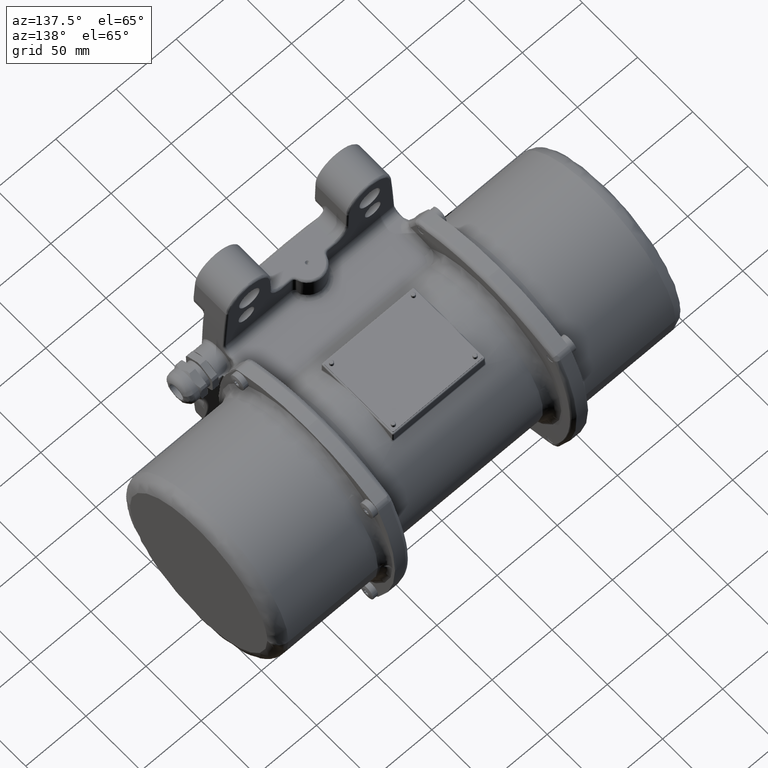
[diagram: clean part render]
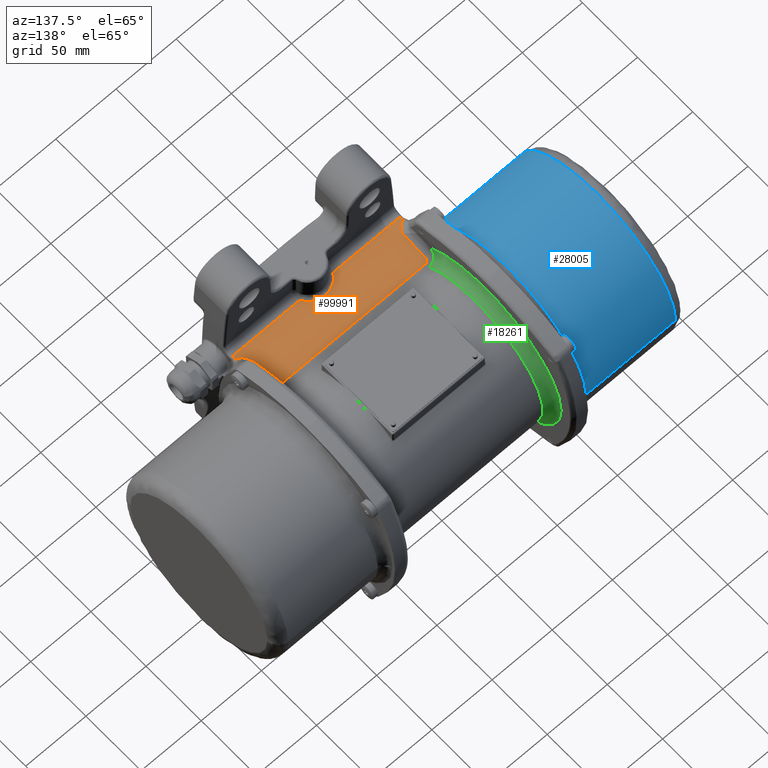
[diagram: same view with three faces highlighted in distinct colors, each labeled with its STEP entity id]
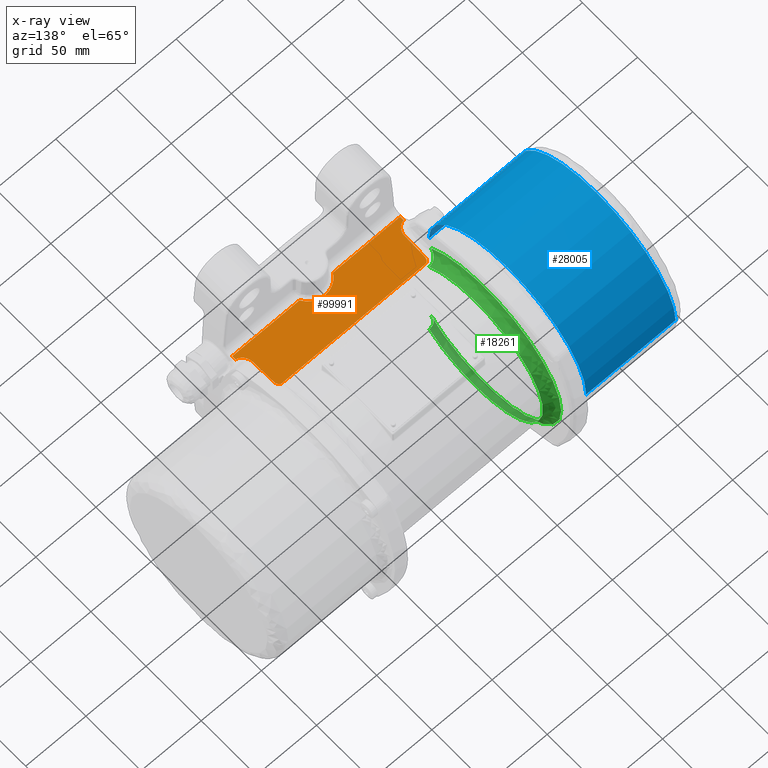
[diagram: x-ray of the same camera — body ghosted, the three highlighted faces saturated]
A machine part, auxiliary view with three faces highlighted in distinct colors.
The next image is the same camera in x-ray (body ghosted, the three faces saturated) — at least one of them is partly hidden behind the body in this view.
Their STEP definitions:

[orange] entity #99991 — the highlighted planar face has unit normal (0, 0, -1).
#787 = CARTESIAN_POINT ( 'NONE',  ( -60.93914837977910500, 69.64585688142381100, 44.00000000000000000 ) ) ;
#1510 = CARTESIAN_POINT ( 'NONE',  ( -65.73974833302568800, 41.04286132038910000, 44.00000000000000000 ) ) ;
#3426 = CARTESIAN_POINT ( 'NONE',  ( -64.37924661413099200, 42.70941332293130400, 44.00000000000000000 ) ) ;
#3822 = CARTESIAN_POINT ( 'NONE',  ( 61.97631834188963800, 68.50623183866042600, 44.00000000000000700 ) ) ;
#4381 = VECTOR ( 'NONE', #81624, 1000.000000000000000 ) ;
#4954 = CARTESIAN_POINT ( 'NONE',  ( -63.06913653580949100, 47.25139716127480200, 44.00000000000000000 ) ) ;
#6128 = CARTESIAN_POINT ( 'NONE',  ( 62.69755902713980300, 65.82337567858870400, 44.00000000000000000 ) ) ;
#7686 = CARTESIAN_POINT ( 'NONE',  ( 59.69858705221309900, 70.04168597467200600, 44.00000000000000000 ) ) ;
#7708 = CARTESIAN_POINT ( 'NONE',  ( -59.69858705221279400, 70.04168597467210600, 44.00000000000000000 ) ) ;
#8074 = VERTEX_POINT ( 'NONE', #52293 ) ;
#8518 = LINE ( 'NONE', #28122, #52681 ) ;
#9065 = CARTESIAN_POINT ( 'NONE',  ( 63.12744215870480200, 46.28838944067730000, 44.00000000000000000 ) ) ;
#10610 = CARTESIAN_POINT ( 'NONE',  ( -60.37346366826241700, 69.92822857121545600, 44.00000000000002100 ) ) ;
#11090 = CARTESIAN_POINT ( 'NONE',  ( -61.20728136503299100, 69.45312635832974000, 44.00000000000000700 ) ) ;
#11574 = CARTESIAN_POINT ( 'NONE',  ( -61.94764204648407000, 68.55415311333156600, 44.00000000000002100 ) ) ;
#12246 = DIRECTION ( 'NONE',  ( -1.000000000000000000, -1.504632769052529900E-035, -1.925929944387235000E-034 ) ) ;
#12849 = EDGE_CURVE ( 'NONE', #69694, #144340, #115960, .T. ) ;
#14233 = ORIENTED_EDGE ( 'NONE', *, *, #52243, .F. ) ;
#14637 = CARTESIAN_POINT ( 'NONE',  ( 62.55255942499282900, 67.02791100050895100, 43.99999999999999300 ) ) ;
#15898 = ORIENTED_EDGE ( 'NONE', *, *, #138067, .T. ) ;
#16562 = CARTESIAN_POINT ( 'NONE',  ( 62.43914540871696800, 67.46722012740157500, 44.00000000000002100 ) ) ;
#17711 = DIRECTION ( 'NONE',  ( 1.387778780781446000E-017, 1.000000000000000000, 1.623133076937364900E-016 ) ) ;
#19518 = CARTESIAN_POINT ( 'NONE',  ( -13.85640646055101900, 36.00000000000000000, 44.00000000000000000 ) ) ;
#19756 = ORIENTED_EDGE ( 'NONE', *, *, #87894, .F. ) ;
#19886 = CARTESIAN_POINT ( 'NONE',  ( 68.13056046211950400, 39.47420850798485500, 44.00000000000000000 ) ) ;
#20861 = CARTESIAN_POINT ( 'NONE',  ( 63.73048527093780500, 43.98627775789584900, 44.00000000000000000 ) ) ;
#21356 = CARTESIAN_POINT ( 'NONE',  ( 65.24438459040619900, 41.55727632668649800, 44.00000000000000000 ) ) ;
#21930 = CARTESIAN_POINT ( 'NONE',  ( -61.72221382262493000, 68.89454461071240100, 44.00000000000002100 ) ) ;
#22426 = CARTESIAN_POINT ( 'NONE',  ( -60.66910831716646900, 69.80909092703433300, 44.00000000000000700 ) ) ;
#22479 = VERTEX_POINT ( 'NONE', #94666 ) ;
#25112 = CARTESIAN_POINT ( 'NONE',  ( -66.65151048912709100, 40.28032519914140200, 44.00000000000000000 ) ) ;
#25862 = CARTESIAN_POINT ( 'NONE',  ( -9.957640517840689800E-016, 44.00000000000000000, 44.00000000000000000 ) ) ;
#25870 = ORIENTED_EDGE ( 'NONE', *, *, #72873, .F. ) ;
#25967 = CARTESIAN_POINT ( 'NONE',  ( 62.06103111216074800, 68.35763599300942400, 44.00000000000000700 ) ) ;
#26107 = VECTOR ( 'NONE', #103478, 1000.000000000000000 ) ;
#26111 = FACE_OUTER_BOUND ( 'NONE', #138147, .T. ) ;
#26474 = CARTESIAN_POINT ( 'NONE',  ( 62.15446629782044900, 68.17977921213324100, 44.00000000000000700 ) ) ;
#28122 = CARTESIAN_POINT ( 'NONE',  ( 90.00000000000000000, 70.04168597467200600, 44.00000000000000000 ) ) ;
#28143 = EDGE_CURVE ( 'NONE', #106541, #58354, #135693, .T. ) ;
#28285 = ORIENTED_EDGE ( 'NONE', *, *, #46505, .T. ) ;
#28296 = CARTESIAN_POINT ( 'NONE',  ( 63.06913653580969700, 47.25139716127340300, 44.00000000000000000 ) ) ;
#30303 = ORIENTED_EDGE ( 'NONE', *, *, #44052, .F. ) ;
#31190 = CARTESIAN_POINT ( 'NONE',  ( -9.957640517840689800E-016, 44.00000000000000000, 44.00000000000000000 ) ) ;
#32217 = CARTESIAN_POINT ( 'NONE',  ( 66.65749876452810000, 40.27604242282930600, 44.00000000000000000 ) ) ;
#32810 = CARTESIAN_POINT ( 'NONE',  ( -61.45936443029931000, 69.22282388759099100, 44.00000000000001400 ) ) ;
#33206 = CARTESIAN_POINT ( 'NONE',  ( 63.06913653580969700, 47.25139716127340300, 44.00000000000000000 ) ) ;
#33295 = CARTESIAN_POINT ( 'NONE',  ( -62.44665151210659100, 67.42690501863685900, 43.99999999999999300 ) ) ;
#33790 = CARTESIAN_POINT ( 'NONE',  ( -62.49742943261289000, 67.24790755735297400, 44.00000000000000700 ) ) ;
#34287 = CARTESIAN_POINT ( 'NONE',  ( -62.08124458693401200, 68.33057048732710800, 44.00000000000000700 ) ) ;
#34770 = CARTESIAN_POINT ( 'NONE',  ( -62.68870446208340000, 66.30072296379867700, 44.00000000000002100 ) ) ;
#36287 = B_SPLINE_CURVE_WITH_KNOTS ( 'NONE', 3,
 ( #33206, #53950, #9065, #133950, #110733, #20861, #65336, #54450, #44055, #144310, #21356, #123091, #87583, #144801, #32217, #43087, #112210, #134429, #19886, #110255, #43574, #145286 ),
 .UNSPECIFIED., .F., .F.,
 ( 4, 2, 2, 2, 2, 2, 2, 2, 2, 2, 4 ),
 ( 0.0000000000000000000, 0.1249999999999999000, 0.2499999999999998100, 0.3749999999999998900, 0.4999999999999997800, 0.5624999999999997800, 0.6249999999999997800, 0.7499999999999997800, 0.8125000000000001100, 0.8749999999999998900, 1.000000000000000000 ),
 .UNSPECIFIED. ) ;
#36460 = CARTESIAN_POINT ( 'NONE',  ( -65.56923131538499700, 41.20997178247209500, 44.00000000000000000 ) ) ;
#37634 = CARTESIAN_POINT ( 'NONE',  ( -63.06913653580949100, 47.25139716127480200, 44.00000000000000000 ) ) ;
#37903 = CARTESIAN_POINT ( 'NONE',  ( -65.24148060396989000, 41.56058246237769500, 44.00000000000000000 ) ) ;
#38900 = CARTESIAN_POINT ( 'NONE',  ( -63.08960673065769200, 46.28663680971320800, 44.00000000000000000 ) ) ;
#40766 = CARTESIAN_POINT ( 'NONE',  ( 60.44975143094574600, 69.90066909475785900, 44.00000000000001400 ) ) ;
#43087 = CARTESIAN_POINT ( 'NONE',  ( 67.27126646777959700, 39.89869817570879500, 44.00000000000000000 ) ) ;
#43574 = CARTESIAN_POINT ( 'NONE',  ( 69.25640506299780000, 39.09028600291355100, 44.00000000000000000 ) ) ;
#43707 = CARTESIAN_POINT ( 'NONE',  ( -10.92820323027548200, 41.07179676972451400, 44.00000000000000000 ) ) ;
#43811 = CARTESIAN_POINT ( 'NONE',  ( 69.73171560659889700, 36.00000000000000000, 44.00000000000000000 ) ) ;
#44052 = EDGE_CURVE ( 'NONE', #58354, #94712, #137405, .T. ) ;
#44055 = CARTESIAN_POINT ( 'NONE',  ( 64.64385129768381000, 42.30533168460365100, 44.00000000000000000 ) ) ;
#44097 = VERTEX_POINT ( 'NONE', #48823 ) ;
#44144 = CARTESIAN_POINT ( 'NONE',  ( -60.85005480650102800, 69.70401138623425700, 44.00000000000000700 ) ) ;
#45010 = ORIENTED_EDGE ( 'NONE', *, *, #100752, .F. ) ;
#45048 = ORIENTED_EDGE ( 'NONE', *, *, #133711, .T. ) ;
#45110 = CARTESIAN_POINT ( 'NONE',  ( -59.81724425777766600, 70.04168597467206300, 44.00000000000000000 ) ) ;
#45237 = LINE ( 'NONE', #136173, #71750 ) ;
#45848 = CARTESIAN_POINT ( 'NONE',  ( -69.73171560659868400, 39.00551916017050000, 44.00000000000000000 ) ) ;
#46344 = CARTESIAN_POINT ( 'NONE',  ( -67.90682384896331300, 39.57209242728400500, 44.00000000000000000 ) ) ;
#46505 = EDGE_CURVE ( 'NONE', #97474, #54708, #8518, .T. ) ;
#47273 = CARTESIAN_POINT ( 'NONE',  ( -62.69755902713949800, 65.82337567858870400, 44.00000000000000000 ) ) ;
#47744 =( BOUNDED_CURVE ( )  B_SPLINE_CURVE ( 3, ( #110868, #109894, #43707, #19518 ),
 .UNSPECIFIED., .F., .F. ) 
 B_SPLINE_CURVE_WITH_KNOTS ( ( 4, 4 ),
 ( 0.0000000000000000000, 1.000000000000000000 ),
 .UNSPECIFIED. ) 
 CURVE ( )  GEOMETRIC_REPRESENTATION_ITEM ( )  RATIONAL_B_SPLINE_CURVE ( ( 1.000000000000000000, 0.9106836025229585500, 0.9106836025229585500, 1.000000000000000000 ) ) 
 REPRESENTATION_ITEM ( '' )  );
#48184 = CARTESIAN_POINT ( 'NONE',  ( 62.01213071407656200, 68.44474619699582300, 44.00000000000000700 ) ) ;
#48267 = CARTESIAN_POINT ( 'NONE',  ( -64.03861936811840400, 43.33635638475445300, 44.00000000000000000 ) ) ;
#48648 = CARTESIAN_POINT ( 'NONE',  ( 62.66539736207156600, 66.41959311480491100, 43.99999999999999300 ) ) ;
#48823 = CARTESIAN_POINT ( 'NONE',  ( 62.69755902713980300, 65.82337567858870400, 44.00000000000000000 ) ) ;
#49136 = CARTESIAN_POINT ( 'NONE',  ( 62.59630138764368500, 66.82651127289625500, 44.00000000000000700 ) ) ;
#50128 = CARTESIAN_POINT ( 'NONE',  ( 62.53184273197745600, 67.11378387989312000, 44.00000000000001400 ) ) ;
#51945 = CARTESIAN_POINT ( 'NONE',  ( 62.93778690209700200, 53.44190633790329800, 44.00000000000000000 ) ) ;
#52243 = EDGE_CURVE ( 'NONE', #144340, #8074, #47744, .T. ) ;
#52293 = CARTESIAN_POINT ( 'NONE',  ( -13.85640646055101900, 36.00000000000000000, 44.00000000000000000 ) ) ;
#52596 = LINE ( 'NONE', #115801, #26107 ) ;
#52617 = CARTESIAN_POINT ( 'NONE',  ( 59.69858705221309900, 70.04168597467200600, 44.00000000000000000 ) ) ;
#52681 = VECTOR ( 'NONE', #96270, 1000.000000000000000 ) ;
#53950 = CARTESIAN_POINT ( 'NONE',  ( 63.07936386993849700, 46.76938283554190400, 44.00000000000000000 ) ) ;
#54450 = CARTESIAN_POINT ( 'NONE',  ( 64.38268712286550500, 42.70365345106030500, 44.00000000000000000 ) ) ;
#54708 = VERTEX_POINT ( 'NONE', #113141 ) ;
#55528 = CARTESIAN_POINT ( 'NONE',  ( -60.19803176057953900, 69.98140778909733200, 44.00000000000001400 ) ) ;
#55621 = LINE ( 'NONE', #93927, #4381 ) ;
#56506 = CARTESIAN_POINT ( 'NONE',  ( -59.99399217286085000, 70.02629579963171100, 44.00000000000001400 ) ) ;
#57256 = CARTESIAN_POINT ( 'NONE',  ( -69.25558734267220000, 39.09043183571355200, 44.00000000000000000 ) ) ;
#58234 = CARTESIAN_POINT ( 'NONE',  ( -67.47578581920839700, 39.78542522274860000, 44.00000000000000000 ) ) ;
#58354 = VERTEX_POINT ( 'NONE', #37634 ) ;
#59593 = CARTESIAN_POINT ( 'NONE',  ( 62.69755902713980300, 65.82337567858870400, 44.00000000000000000 ) ) ;
#59686 = CARTESIAN_POINT ( 'NONE',  ( -63.93348595433230500, 43.55027288247789800, 44.00000000000000000 ) ) ;
#60086 = CARTESIAN_POINT ( 'NONE',  ( 61.97007982350808700, 68.51677816195974900, 44.00000000000000700 ) ) ;
#60659 = CARTESIAN_POINT ( 'NONE',  ( -63.25604765916130400, 45.34901738768449800, 44.00000000000000000 ) ) ;
#64825 = AXIS2_PLACEMENT_3D ( 'NONE', #142114, #129815, #17711 ) ;
#65336 = CARTESIAN_POINT ( 'NONE',  ( 63.92636548624800200, 43.54239912278794800, 44.00000000000000000 ) ) ;
#66394 = CARTESIAN_POINT ( 'NONE',  ( -62.38251506993059100, 67.62946058095141700, 44.00000000000000700 ) ) ;
#67422 = CARTESIAN_POINT ( 'NONE',  ( 10.92820323027548900, 41.07179676972448600, 43.99999999999999300 ) ) ;
#68335 = CARTESIAN_POINT ( 'NONE',  ( -60.50928102440239800, 69.87990858688422700, 44.00000000000000700 ) ) ;
#68578 = CARTESIAN_POINT ( 'NONE',  ( -68.79494389361329400, 39.21956169501900300, 44.00000000000000000 ) ) ;
#69057 = CARTESIAN_POINT ( 'NONE',  ( -66.27107874925739800, 40.56593489005155100, 44.00000000000000000 ) ) ;
#69694 = VERTEX_POINT ( 'NONE', #78139 ) ;
#70523 = CARTESIAN_POINT ( 'NONE',  ( -64.63976921321469100, 42.31107683890095200, 44.00000000000000000 ) ) ;
#71075 = ORIENTED_EDGE ( 'NONE', *, *, #28143, .F. ) ;
#71401 = CARTESIAN_POINT ( 'NONE',  ( 61.61192021691600500, 69.05093439640708700, 44.00000000000000700 ) ) ;
#71660 = B_SPLINE_CURVE_WITH_KNOTS ( 'NONE', 3,
 ( #6128, #119620, #51945, #28296 ),
 .UNSPECIFIED., .F., .F.,
 ( 4, 4 ),
 ( 0.0000000000000000000, 1.000000000000000000 ),
 .UNSPECIFIED. ) ;
#71750 = VECTOR ( 'NONE', #12246, 1000.000000000000000 ) ;
#72873 = EDGE_CURVE ( 'NONE', #136600, #69694, #45237, .T. ) ;
#72880 = CARTESIAN_POINT ( 'NONE',  ( 62.51063098746750800, 67.19802753963705300, 44.00000000000000700 ) ) ;
#74339 = CARTESIAN_POINT ( 'NONE',  ( 60.76849155773153700, 69.75617401989121900, 44.00000000000001400 ) ) ;
#75743 = EDGE_CURVE ( 'NONE', #44097, #133907, #71660, .T. ) ;
#77740 = CARTESIAN_POINT ( 'NONE',  ( -61.93091305827431400, 68.58150355972281900, 44.00000000000001400 ) ) ;
#78139 = CARTESIAN_POINT ( 'NONE',  ( 13.85640646055101900, 36.00000000000000000, 44.00000000000000000 ) ) ;
#78769 = CARTESIAN_POINT ( 'NONE',  ( 5.856406460551008700, 43.99999999999999300, 43.99999999999999300 ) ) ;
#81011 = CARTESIAN_POINT ( 'NONE',  ( -69.73171560659868400, 39.00551916017050000, 44.00000000000000000 ) ) ;
#81420 = CARTESIAN_POINT ( 'NONE',  ( -68.12607786423501500, 39.47605780210474800, 44.00000000000000000 ) ) ;
#81498 = ORIENTED_EDGE ( 'NONE', *, *, #116958, .F. ) ;
#81624 = DIRECTION ( 'NONE',  ( -1.387778780781446000E-017, -1.000000000000000000, -1.623133076937364900E-016 ) ) ;
#81981 = CARTESIAN_POINT ( 'NONE',  ( -62.69755902713949800, 65.82337567858870400, 44.00000000000000000 ) ) ;
#82479 = CARTESIAN_POINT ( 'NONE',  ( -62.81239615536200900, 59.63253614240220200, 44.00000000000000000 ) ) ;
#85236 = CARTESIAN_POINT ( 'NONE',  ( 60.42432310052734600, 69.91021820239873800, 44.00000000000002100 ) ) ;
#86679 = CARTESIAN_POINT ( 'NONE',  ( 59.93381797818696600, 70.04168597467204900, 44.00000000000000700 ) ) ;
#87583 = CARTESIAN_POINT ( 'NONE',  ( 65.74365774664720200, 41.03912685685595100, 44.00000000000000000 ) ) ;
#87894 = EDGE_CURVE ( 'NONE', #142492, #106541, #52596, .T. ) ;
#89638 = CARTESIAN_POINT ( 'NONE',  ( -61.00222820798681800, 69.60204531882165200, 44.00000000000001400 ) ) ;
#90016 = ORIENTED_EDGE ( 'NONE', *, *, #75743, .F. ) ;
#93243 = CARTESIAN_POINT ( 'NONE',  ( -65.08378494396158900, 41.74481535709755100, 44.00000000000000000 ) ) ;
#93641 = CARTESIAN_POINT ( 'NONE',  ( 62.32387422710476700, 67.80952015876719900, 44.00000000000000000 ) ) ;
#93927 = CARTESIAN_POINT ( 'NONE',  ( 69.73171560659889700, 29.50000000000000000, 44.00000000000000000 ) ) ;
#94286 = CARTESIAN_POINT ( 'NONE',  ( -62.93778690222290400, 53.44190633790719900, 44.00000000000000000 ) ) ;
#94666 = CARTESIAN_POINT ( 'NONE',  ( 69.73171560659889700, 39.00551916017104800, 44.00000000000000000 ) ) ;
#94712 = VERTEX_POINT ( 'NONE', #47273 ) ;
#96270 = DIRECTION ( 'NONE',  ( -1.000000000000000000, 3.061616997868385100E-016, -1.925929944387224900E-034 ) ) ;
#96751 = B_SPLINE_CURVE_WITH_KNOTS ( 'NONE', 3,
 ( #7708, #45110, #56506, #55528, #124142, #134039, #10610, #68335, #22426, #44144, #787, #100452, #89638, #100942, #11090, #32810, #21930, #101917, #123187, #77740, #11574, #124624, #34287, #101422, #66394, #33295, #145376, #135504, #33790, #102411, #34770, #112803 ),
 .UNSPECIFIED., .F., .F.,
 ( 4, 1, 1, 2, 2, 1, 1, 1, 2, 2, 1, 1, 1, 1, 2, 2, 1, 1, 1, 2, 2, 4 ),
 ( 0.0000000000000000000, 0.06249999999995795000, 0.09374999999993692500, 0.1093749999999273200, 0.1249999999999177300, 0.1874999999998814000, 0.2187499999998616100, 0.2343749999998536400, 0.2421874999998496500, 0.2499999999998456800, 0.3749999999998042100, 0.4374999999997850100, 0.4687499999997754600, 0.4843749999997725700, 0.4921874999997731800, 0.4999999999997737400, 0.6249999999998346900, 0.6874999999998645500, 0.7187499999998787600, 0.7343749999998830900, 0.7499999999998873100, 1.000000000000000000 ),
 .UNSPECIFIED. ) ;
#97474 = VERTEX_POINT ( 'NONE', #52617 ) ;
#97515 = CARTESIAN_POINT ( 'NONE',  ( 60.58376049784748600, 69.84583056268599000, 44.00000000000000000 ) ) ;
#99991 = ADVANCED_FACE ( 'NONE', ( #26111 ), #119907, .F. ) ;
#100452 = CARTESIAN_POINT ( 'NONE',  ( -60.97703569588627200, 69.61973036484568000, 44.00000000000002100 ) ) ;
#100752 = EDGE_CURVE ( 'NONE', #133907, #22479, #36287, .T. ) ;
#100942 = CARTESIAN_POINT ( 'NONE',  ( -61.01607472257461500, 69.59213627421529200, 44.00000000000000000 ) ) ;
#101422 = CARTESIAN_POINT ( 'NONE',  ( -62.23658835020260200, 68.02022469455853600, 44.00000000000000000 ) ) ;
#101917 = CARTESIAN_POINT ( 'NONE',  ( -61.84582663949980500, 68.71550670701894600, 44.00000000000001400 ) ) ;
#102411 = CARTESIAN_POINT ( 'NONE',  ( -62.62448590053377700, 66.76612011070740500, 44.00000000000000700 ) ) ;
#102466 = ORIENTED_EDGE ( 'NONE', *, *, #141468, .F. ) ;
#103478 = DIRECTION ( 'NONE',  ( 1.387778780781446000E-017, 1.000000000000000000, 1.623133076937364900E-016 ) ) ;
#105474 = CARTESIAN_POINT ( 'NONE',  ( 61.32786114848404000, 69.33898507364902700, 44.00000000000002100 ) ) ;
#106045 = CARTESIAN_POINT ( 'NONE',  ( -63.65147356445359600, 44.21283111775645100, 44.00000000000000000 ) ) ;
#106456 = CARTESIAN_POINT ( 'NONE',  ( 62.69310028151191000, 66.06374548867100300, 44.00000000000002100 ) ) ;
#106541 = VERTEX_POINT ( 'NONE', #81011 ) ;
#107901 = CARTESIAN_POINT ( 'NONE',  ( 60.92247369242110700, 69.65983927210946500, 44.00000000000000700 ) ) ;
#108394 = CARTESIAN_POINT ( 'NONE',  ( 61.06795766475005400, 69.55394673362499700, 44.00000000000001400 ) ) ;
#109894 = CARTESIAN_POINT ( 'NONE',  ( -5.856406460550966000, 44.00000000000003600, 44.00000000000000000 ) ) ;
#110255 = CARTESIAN_POINT ( 'NONE',  ( 68.79702657534650700, 39.21902692133085100, 44.00000000000000000 ) ) ;
#110733 = CARTESIAN_POINT ( 'NONE',  ( 63.41620151338700900, 44.88837375448225200, 44.00000000000000000 ) ) ;
#110868 = CARTESIAN_POINT ( 'NONE',  ( -9.957640517840689800E-016, 44.00000000000000000, 44.00000000000000000 ) ) ;
#111948 = B_SPLINE_CURVE_WITH_KNOTS ( 'NONE', 3,
 ( #59593, #106456, #48648, #49136, #14637, #50128, #140480, #72880, #16562, #93641, #26474, #25967, #48184, #116343, #3822, #60086, #139048, #71401, #105474, #116823, #128186, #108394, #141936, #120234, #107901, #74339, #97515, #130109, #40766, #85236, #119734, #86679, #7686 ),
 .UNSPECIFIED., .F., .F.,
 ( 4, 1, 1, 1, 2, 2, 1, 1, 1, 1, 2, 2, 1, 1, 1, 1, 2, 2, 1, 1, 2, 2, 4 ),
 ( 0.0000000000000000000, 0.1250000000000604800, 0.1875000000000907100, 0.2187500000001058300, 0.2343750000001125800, 0.2500000000001192900, 0.3750000000001320100, 0.4375000000001376700, 0.4687500000001405500, 0.4843750000001452700, 0.4921875000001443300, 0.5000000000001433300, 0.6250000000001014700, 0.6875000000000820500, 0.7187500000000722800, 0.7343750000000659500, 0.7421875000000651700, 0.7500000000000643900, 0.8125000000000522900, 0.8437500000000446300, 0.8593750000000407500, 0.8750000000000368600, 1.000000000000000000 ),
 .UNSPECIFIED. ) ;
#112210 = CARTESIAN_POINT ( 'NONE',  ( 67.48306603713699300, 39.78158225205089600, 44.00000000000000000 ) ) ;
#112356 = CARTESIAN_POINT ( 'NONE',  ( 13.85640646055101900, 36.00000000000000000, 44.00000000000000000 ) ) ;
#112803 = CARTESIAN_POINT ( 'NONE',  ( -62.69755902713949800, 65.82337567858870400, 44.00000000000000000 ) ) ;
#113141 = CARTESIAN_POINT ( 'NONE',  ( -59.69858705221279400, 70.04168597467210600, 44.00000000000000000 ) ) ;
#115801 = CARTESIAN_POINT ( 'NONE',  ( -69.73171560659889700, 29.50000000000000000, 44.00000000000000000 ) ) ;
#115960 =( BOUNDED_CURVE ( )  B_SPLINE_CURVE ( 3, ( #112356, #67422, #78769, #25862 ),
 .UNSPECIFIED., .F., .F. ) 
 B_SPLINE_CURVE_WITH_KNOTS ( ( 4, 4 ),
 ( 0.0000000000000000000, 1.000000000000000000 ),
 .UNSPECIFIED. ) 
 CURVE ( )  GEOMETRIC_REPRESENTATION_ITEM ( )  RATIONAL_B_SPLINE_CURVE ( ( 1.000000000000000000, 0.9106836025229593200, 0.9106836025229593200, 1.000000000000000000 ) ) 
 REPRESENTATION_ITEM ( '' )  );
#116064 = LINE ( 'NONE', #135646, #123146 ) ;
#116343 = CARTESIAN_POINT ( 'NONE',  ( 61.99070565662881200, 68.48168953017894000, 44.00000000000002100 ) ) ;
#116823 = CARTESIAN_POINT ( 'NONE',  ( 61.17810254028174900, 69.46798033202661300, 44.00000000000000700 ) ) ;
#116958 = EDGE_CURVE ( 'NONE', #22479, #136600, #55621, .T. ) ;
#119620 = CARTESIAN_POINT ( 'NONE',  ( 62.81239615541120700, 59.63253614240319700, 44.00000000000000000 ) ) ;
#119734 = CARTESIAN_POINT ( 'NONE',  ( 60.16616872097497300, 70.00123435243409600, 44.00000000000000000 ) ) ;
#119907 = PLANE ( 'NONE',  #64825 ) ;
#120042 = ORIENTED_EDGE ( 'NONE', *, *, #12849, .F. ) ;
#120234 = CARTESIAN_POINT ( 'NONE',  ( 61.03578090654707500, 69.57784507000862100, 44.00000000000002100 ) ) ;
#123091 = CARTESIAN_POINT ( 'NONE',  ( 65.57278545392239300, 41.20637331703530000, 44.00000000000000000 ) ) ;
#123146 = VECTOR ( 'NONE', #146485, 1000.000000000000000 ) ;
#123187 = CARTESIAN_POINT ( 'NONE',  ( -61.90568007811528900, 68.62226318885865300, 44.00000000000000000 ) ) ;
#124142 = CARTESIAN_POINT ( 'NONE',  ( -60.28501308819929200, 69.95639875465674600, 44.00000000000000000 ) ) ;
#124624 = CARTESIAN_POINT ( 'NONE',  ( -61.95691822121911900, 68.53878451018700000, 44.00000000000001400 ) ) ;
#127804 = CARTESIAN_POINT ( 'NONE',  ( -63.06913653580949100, 47.25139716127480200, 44.00000000000000000 ) ) ;
#128186 = CARTESIAN_POINT ( 'NONE',  ( 61.10129096768402200, 69.52872044115460400, 44.00000000000000000 ) ) ;
#129815 = DIRECTION ( 'NONE',  ( 2.372981233918829500E-019, 1.623133076937364900E-016, -1.000000000000000000 ) ) ;
#130109 = CARTESIAN_POINT ( 'NONE',  ( 60.50350035016585100, 69.87938322468004100, 44.00000000000000700 ) ) ;
#133711 = EDGE_CURVE ( 'NONE', #54708, #94712, #96751, .T. ) ;
#133907 = VERTEX_POINT ( 'NONE', #142273 ) ;
#133950 = CARTESIAN_POINT ( 'NONE',  ( 63.29595485735069400, 45.34888897067870100, 44.00000000000000000 ) ) ;
#134039 = CARTESIAN_POINT ( 'NONE',  ( -60.34289748217383200, 69.93844355044301200, 44.00000000000000700 ) ) ;
#134429 = CARTESIAN_POINT ( 'NONE',  ( 67.91219061624170200, 39.56968322481589700, 44.00000000000000000 ) ) ;
#135504 = CARTESIAN_POINT ( 'NONE',  ( -62.48889045650143700, 67.27931891237203400, 44.00000000000000000 ) ) ;
#135646 = CARTESIAN_POINT ( 'NONE',  ( 69.50000000000000000, 36.00000000000000000, 44.00000000000000000 ) ) ;
#135693 = B_SPLINE_CURVE_WITH_KNOTS ( 'NONE', 3,
 ( #45848, #57256, #68578, #81420, #46344, #58234, #136725, #25112, #69057, #1510, #36460, #37903, #93243, #70523, #3426, #48267, #59686, #140093, #106045, #60659, #38900, #127804 ),
 .UNSPECIFIED., .F., .F.,
 ( 4, 2, 2, 2, 2, 2, 2, 2, 2, 2, 4 ),
 ( 0.0000000000000000000, 0.1249999999999999600, 0.1875000000000000300, 0.2500000000000000600, 0.3750000000000000600, 0.4375000000000001100, 0.5000000000000001100, 0.6250000000000001100, 0.6875000000000002200, 0.7500000000000002200, 1.000000000000000000 ),
 .UNSPECIFIED. ) ;
#136173 = CARTESIAN_POINT ( 'NONE',  ( 69.50000000000000000, 36.00000000000000000, 44.00000000000000000 ) ) ;
#136600 = VERTEX_POINT ( 'NONE', #43811 ) ;
#136725 = CARTESIAN_POINT ( 'NONE',  ( -67.26364031644379800, 39.90309389215539700, 44.00000000000000000 ) ) ;
#136825 = CARTESIAN_POINT ( 'NONE',  ( -69.73171560659889700, 36.00000000000000000, 44.00000000000000000 ) ) ;
#137405 = B_SPLINE_CURVE_WITH_KNOTS ( 'NONE', 3,
 ( #4954, #94286, #82479, #81981 ),
 .UNSPECIFIED., .F., .F.,
 ( 4, 4 ),
 ( 0.0000000000000000000, 1.000000000000000000 ),
 .UNSPECIFIED. ) ;
#138067 = EDGE_CURVE ( 'NONE', #44097, #97474, #111948, .T. ) ;
#138147 = EDGE_LOOP ( 'NONE', ( #45010, #90016, #15898, #28285, #45048, #30303, #71075, #19756, #102466, #14233, #120042, #25870, #81498 ) ) ;
#139048 = CARTESIAN_POINT ( 'NONE',  ( 61.82889973619038000, 68.75250211222254400, 44.00000000000000700 ) ) ;
#140093 = CARTESIAN_POINT ( 'NONE',  ( -63.74008076500871300, 43.98800244284104400, 44.00000000000000000 ) ) ;
#140480 = CARTESIAN_POINT ( 'NONE',  ( 62.51759379494638600, 67.17093440179523600, 44.00000000000000000 ) ) ;
#141468 = EDGE_CURVE ( 'NONE', #8074, #142492, #116064, .T. ) ;
#141936 = CARTESIAN_POINT ( 'NONE',  ( 61.04564345000848400, 69.57058533241188100, 44.00000000000000700 ) ) ;
#142114 = CARTESIAN_POINT ( 'NONE',  ( 69.50000000000000000, 29.50000000000000000, 44.00000000000000000 ) ) ;
#142273 = CARTESIAN_POINT ( 'NONE',  ( 63.06913653580969700, 47.25139716127340300, 44.00000000000000000 ) ) ;
#142492 = VERTEX_POINT ( 'NONE', #136825 ) ;
#144310 = CARTESIAN_POINT ( 'NONE',  ( 65.08718494941290100, 41.74075386132375300, 44.00000000000000000 ) ) ;
#144340 = VERTEX_POINT ( 'NONE', #31190 ) ;
#144801 = CARTESIAN_POINT ( 'NONE',  ( 66.27615549288908900, 40.56183693812600700, 44.00000000000000000 ) ) ;
#145286 = CARTESIAN_POINT ( 'NONE',  ( 69.73171560659889700, 39.00551916017104800, 44.00000000000000000 ) ) ;
#145376 = CARTESIAN_POINT ( 'NONE',  ( -62.47224707639172400, 67.33855831217829300, 44.00000000000000700 ) ) ;
#146485 = DIRECTION ( 'NONE',  ( -1.000000000000000000, -1.504632769052529900E-035, -1.925929944387235000E-034 ) ) ;

[blue] entity #28005 — the highlighted cylindrical surface (partial cylindrical patch) has radius 71.4 mm, axis along (-1, -0, -0).
#1567 = DIRECTION ( 'NONE',  ( -1.000000000000000000, -2.857509198010475400E-015, -1.925929944387324800E-034 ) ) ;
#4254 = LINE ( 'NONE', #136777, #124353 ) ;
#4302 = FACE_OUTER_BOUND ( 'NONE', #109637, .T. ) ;
#4991 = DIRECTION ( 'NONE',  ( -1.000000000000000000, -2.857509198010475400E-015, -1.925929944387324800E-034 ) ) ;
#6969 = DIRECTION ( 'NONE',  ( -1.000000000000000000, -2.857509198010475400E-015, -1.925929944387324800E-034 ) ) ;
#11278 = DIRECTION ( 'NONE',  ( 2.721134864277344300E-015, -1.000000000000000000, 0.0000000000000000000 ) ) ;
#13711 = AXIS2_PLACEMENT_3D ( 'NONE', #61754, #6969, #29632 ) ;
#17943 = DIRECTION ( 'NONE',  ( -1.000000000000000000, -2.857509198010475400E-015, -1.925929944387324800E-034 ) ) ;
#26735 = EDGE_CURVE ( 'NONE', #56963, #122820, #101581, .T. ) ;
#28005 = ADVANCED_FACE ( 'NONE', ( #4302 ), #30745, .T. ) ;
#29632 = DIRECTION ( 'NONE',  ( 2.915501640297154700E-015, -1.000000000000000000, 0.0000000000000000000 ) ) ;
#30745 = CYLINDRICAL_SURFACE ( 'NONE', #90511, 71.40000000000000600 ) ;
#31794 = ORIENTED_EDGE ( 'NONE', *, *, #26735, .T. ) ;
#33013 = CARTESIAN_POINT ( 'NONE',  ( -86.49999999999701600, 186.4000000000000100, 4.875779305320571600E-013 ) ) ;
#36448 = CARTESIAN_POINT ( 'NONE',  ( -160.7999999999963200, 43.60000000000000100, 4.788339523861451000E-013 ) ) ;
#37136 = ORIENTED_EDGE ( 'NONE', *, *, #100222, .T. ) ;
#39018 = CARTESIAN_POINT ( 'NONE',  ( -169.9999999999965000, 115.0000000000000000, 4.788339523861451000E-013 ) ) ;
#40216 = CARTESIAN_POINT ( 'NONE',  ( -169.9999999999967000, 186.4000000000000100, 4.875779305320571600E-013 ) ) ;
#45802 = DIRECTION ( 'NONE',  ( 1.000000000000000000, 2.857509198010475400E-015, 1.925929944387324800E-034 ) ) ;
#53857 = CARTESIAN_POINT ( 'NONE',  ( -160.7999999999966900, 186.4000000000000100, 4.875779305320571600E-013 ) ) ;
#56963 = VERTEX_POINT ( 'NONE', #121247 ) ;
#59227 = AXIS2_PLACEMENT_3D ( 'NONE', #109582, #45802, #11278 ) ;
#61754 = CARTESIAN_POINT ( 'NONE',  ( -86.49999999999680300, 115.0000000000000000, 4.788339523861451000E-013 ) ) ;
#85507 = VERTEX_POINT ( 'NONE', #36448 ) ;
#90511 = AXIS2_PLACEMENT_3D ( 'NONE', #39018, #4991, #144164 ) ;
#92668 = ORIENTED_EDGE ( 'NONE', *, *, #100693, .T. ) ;
#100222 = EDGE_CURVE ( 'NONE', #103721, #85507, #142707, .T. ) ;
#100693 = EDGE_CURVE ( 'NONE', #122820, #103721, #133808, .T. ) ;
#101581 = CIRCLE ( 'NONE', #13711, 71.40000000000000600 ) ;
#103721 = VERTEX_POINT ( 'NONE', #53857 ) ;
#103785 = VECTOR ( 'NONE', #17943, 1000.000000000000000 ) ;
#105362 = EDGE_CURVE ( 'NONE', #56963, #85507, #4254, .T. ) ;
#109582 = CARTESIAN_POINT ( 'NONE',  ( -160.7999999999964900, 115.0000000000000000, 4.788339523861451000E-013 ) ) ;
#109637 = EDGE_LOOP ( 'NONE', ( #31794, #92668, #37136, #122119 ) ) ;
#121247 = CARTESIAN_POINT ( 'NONE',  ( -86.49999999999658900, 43.60000000000000100, 4.788339523861451000E-013 ) ) ;
#122119 = ORIENTED_EDGE ( 'NONE', *, *, #105362, .F. ) ;
#122820 = VERTEX_POINT ( 'NONE', #33013 ) ;
#124353 = VECTOR ( 'NONE', #1567, 1000.000000000000000 ) ;
#133808 = LINE ( 'NONE', #40216, #103785 ) ;
#136777 = CARTESIAN_POINT ( 'NONE',  ( -169.9999999999963300, 43.60000000000000100, 4.788339523861451000E-013 ) ) ;
#142707 = CIRCLE ( 'NONE', #59227, 71.40000000000000600 ) ;
#144164 = DIRECTION ( 'NONE',  ( 2.721134864277344300E-015, -1.000000000000000000, 0.0000000000000000000 ) ) ;

[green] entity #18261 — the highlighted face is a freeform B-spline surface patch.
#839 = DIRECTION ( 'NONE',  ( -1.000000000000000000, 3.061616997868385100E-016, -1.925929944387224900E-034 ) ) ;
#1362 = CARTESIAN_POINT ( 'NONE',  ( -64.28817412712643900, 115.3331984300653900, -90.06818216113424600 ) ) ;
#1843 = CARTESIAN_POINT ( 'NONE',  ( -64.28817412712646700, 70.22408043873119300, 42.15883095441319700 ) ) ;
#2339 = CARTESIAN_POINT ( 'NONE',  ( -67.57570426840351300, 115.3505495084609700, 94.75842061548908600 ) ) ;
#2842 = VERTEX_POINT ( 'NONE', #114548 ) ;
#4195 = CARTESIAN_POINT ( 'NONE',  ( -61.86910910619590000, 73.14130173791846800, 45.45705303150860000 ) ) ;
#5934 = EDGE_CURVE ( 'NONE', #126469, #81722, #68707, .T. ) ;
#6666 = CARTESIAN_POINT ( 'NONE',  ( -66.81446538965489900, 69.28160506836800900, -47.34346893063970900 ) ) ;
#7140 = CARTESIAN_POINT ( 'NONE',  ( -67.50110397069167300, 67.64288038407657700, -48.11582711871100300 ) ) ;
#7615 = CARTESIAN_POINT ( 'NONE',  ( -65.57116889983269900, 70.96871028344000400, -46.53131600377270200 ) ) ;
#8565 = CARTESIAN_POINT ( 'NONE',  ( -67.67237473153707600, 66.78696998589360600, -48.51176268530280600 ) ) ;
#12161 = CARTESIAN_POINT ( 'NONE',  ( -67.69584565201726900, 115.3754067308114900, -101.4776744554473700 ) ) ;
#12654 = CARTESIAN_POINT ( 'NONE',  ( -67.69584565201724000, 184.2905844135383400, 74.13955931032789700 ) ) ;
#13134 = CARTESIAN_POINT ( 'NONE',  ( -67.69584565201724000, 184.2905844135383100, 0.0000000000000000000 ) ) ;
#13617 = CARTESIAN_POINT ( 'NONE',  ( -67.57570426840347000, 179.7025700754877600, 0.0000000000000000000 ) ) ;
#14314 = B_SPLINE_CURVE_WITH_KNOTS ( 'NONE', 3,
 ( #83176, #94500, #138462, #139893, #37716, #4195, #117200, #139413, #15977, #50494, #94985, #15023, #82199, #49036, #140386, #84144, #27829, #106349, #71774, #61422, #105855, #38699, #128088, #117702 ),
 .UNSPECIFIED., .F., .F.,
 ( 4, 2, 2, 2, 2, 2, 2, 2, 2, 2, 2, 4 ),
 ( 0.0000000000000000000, 0.06250000000000033300, 0.1249999999999991100, 0.1874999999999995800, 0.2499999999999999200, 0.3750000000000000600, 0.4374999999999995000, 0.5000000000000000000, 0.6250000000000000000, 0.6874999999999995600, 0.7499999999999998900, 1.000000000000000000 ),
 .UNSPECIFIED. ) ;
#15023 = CARTESIAN_POINT ( 'NONE',  ( -64.83952484539777600, 71.63772609253807400, 46.20404861239799700 ) ) ;
#15977 = CARTESIAN_POINT ( 'NONE',  ( -62.98502041339257600, 72.75266139511967400, 45.65169943772880100 ) ) ;
#18261 = ADVANCED_FACE ( 'NONE', ( #52289 ), #136874, .F. ) ;
#18406 = CARTESIAN_POINT ( 'NONE',  ( -62.97394674458960400, 72.75741368532679600, -45.64932594590260400 ) ) ;
#22002 = CARTESIAN_POINT ( 'NONE',  ( -59.69858705221290100, 73.42201033747871000, 45.31578947368419800 ) ) ;
#23976 = CARTESIAN_POINT ( 'NONE',  ( -67.57570426840349900, 67.89240531532692600, -44.35422299396030600 ) ) ;
#24966 = CARTESIAN_POINT ( 'NONE',  ( -59.69858705221281500, 70.22408043873120700, -42.15883095441317600 ) ) ;
#26418 = CARTESIAN_POINT ( 'NONE',  ( -59.69858705221278700, 115.3331984300654200, 90.06818216113427400 ) ) ;
#27829 = CARTESIAN_POINT ( 'NONE',  ( -66.34157829864557200, 70.04975067663237100, 46.97623660313919900 ) ) ;
#29799 = CARTESIAN_POINT ( 'NONE',  ( -59.69858705221290100, 73.42201033747871000, -45.31578947368419800 ) ) ;
#30272 = CARTESIAN_POINT ( 'NONE',  ( -64.19863369453980800, 72.10242031082638900, -45.97490050592610100 ) ) ;
#32927 = DIRECTION ( 'NONE',  ( -2.002838903044843200E-016, -1.000000000000000000, -3.081469086897273100E-033 ) ) ;
#34475 = CIRCLE ( 'NONE', #64683, 69.29058441353700500 ) ;
#34818 = CARTESIAN_POINT ( 'NONE',  ( -67.69584565201729700, 115.0000000000000000, -1.452989782264358100E-019 ) ) ;
#35356 = CARTESIAN_POINT ( 'NONE',  ( -67.57570426840349900, 115.3505495084609700, -94.75842061548908600 ) ) ;
#37716 = CARTESIAN_POINT ( 'NONE',  ( -61.27227879704319900, 73.27851052440927000, 45.38808445086370100 ) ) ;
#38018 = ORIENTED_EDGE ( 'NONE', *, *, #135728, .F. ) ;
#38699 = CARTESIAN_POINT ( 'NONE',  ( -67.50209127628888000, 67.63516952736306100, 48.11937425878289100 ) ) ;
#40698 = CARTESIAN_POINT ( 'NONE',  ( -67.01373296565739700, 68.88138580492069700, -47.53333393118911900 ) ) ;
#41164 = CARTESIAN_POINT ( 'NONE',  ( -64.41727899484899900, 71.95439163966121000, -46.04806996915280600 ) ) ;
#41634 = CARTESIAN_POINT ( 'NONE',  ( -66.33696664973480500, 70.05586643751370000, -46.97328658759551700 ) ) ;
#41757 = AXIS2_PLACEMENT_3D ( 'NONE', #101765, #67238, #125464 ) ;
#47151 = CARTESIAN_POINT ( 'NONE',  ( -67.69584565201724000, 184.2905844135383400, -74.13955931032789700 ) ) ;
#49036 = CARTESIAN_POINT ( 'NONE',  ( -65.40676779698046100, 71.13453767600687200, 46.45047918406469700 ) ) ;
#50494 = CARTESIAN_POINT ( 'NONE',  ( -63.75560128919836700, 72.38850767832447300, 45.83322070036599900 ) ) ;
#50707 = CARTESIAN_POINT ( 'NONE',  ( -59.69858705221290100, 73.42201033747871000, -45.31578947368419800 ) ) ;
#52289 = FACE_OUTER_BOUND ( 'NONE', #106749, .T. ) ;
#52649 = AXIS2_PLACEMENT_3D ( 'NONE', #34818, #839, #57552 ) ;
#52953 = CARTESIAN_POINT ( 'NONE',  ( -62.70678506309269600, 72.86680519180239900, -45.59463629101119900 ) ) ;
#56608 = CARTESIAN_POINT ( 'NONE',  ( -59.69858705221278000, 176.5000000000000600, -65.80378757339930500 ) ) ;
#57552 = DIRECTION ( 'NONE',  ( -2.002838903044843200E-016, -1.000000000000000000, -3.081469086897273100E-033 ) ) ;
#57594 = CARTESIAN_POINT ( 'NONE',  ( -67.69584565201728300, 64.55203847066837900, -47.49935016297328600 ) ) ;
#58077 = CARTESIAN_POINT ( 'NONE',  ( -64.28817412712645300, 70.22408043873120700, -42.15883095441318300 ) ) ;
#58571 = CARTESIAN_POINT ( 'NONE',  ( -64.28817412712642500, 176.5000000000000300, 65.80378757339930500 ) ) ;
#60357 = ORIENTED_EDGE ( 'NONE', *, *, #5934, .F. ) ;
#61422 = CARTESIAN_POINT ( 'NONE',  ( -67.01248552680696900, 68.86091163934678100, 47.54260081877360000 ) ) ;
#64354 = CARTESIAN_POINT ( 'NONE',  ( -62.14961455001309800, 73.06010179080422500, -45.49782071778749800 ) ) ;
#64683 = AXIS2_PLACEMENT_3D ( 'NONE', #133662, #133182, #32927 ) ;
#64699 = EDGE_CURVE ( 'NONE', #83344, #110910, #34475, .T. ) ;
#67238 = DIRECTION ( 'NONE',  ( 1.000000000000000000, -3.061616997868385100E-016, 1.925929944387224900E-034 ) ) ;
#67953 = CARTESIAN_POINT ( 'NONE',  ( -67.69584565201726900, 115.3754067308114600, 101.4776744554474100 ) ) ;
#68707 = CIRCLE ( 'NONE', #41757, 61.50000000000000000 ) ;
#68917 = CARTESIAN_POINT ( 'NONE',  ( -67.57570426840348400, 179.7025700754877300, -69.23047441789226800 ) ) ;
#69076 = CARTESIAN_POINT ( 'NONE',  ( -67.69584565201729700, 65.91609151768609800, 48.90761716204679700 ) ) ;
#69409 = CARTESIAN_POINT ( 'NONE',  ( -64.28817412712645300, 115.3331984300653900, 90.06818216113427400 ) ) ;
#69469 = EDGE_CURVE ( 'NONE', #2842, #126469, #129721, .T. ) ;
#71774 = CARTESIAN_POINT ( 'NONE',  ( -66.81277835734697100, 69.26297567682117100, 47.35196614373609200 ) ) ;
#75207 = CARTESIAN_POINT ( 'NONE',  ( -66.05892783918351100, 70.42995860005420600, -46.79294205110139900 ) ) ;
#79325 = CARTESIAN_POINT ( 'NONE',  ( -59.69858705221278000, 176.5000000000000600, 65.80378757339930500 ) ) ;
#80304 = CARTESIAN_POINT ( 'NONE',  ( -64.28817412712642500, 176.5000000000000600, 0.0000000000000000000 ) ) ;
#81722 = VERTEX_POINT ( 'NONE', #22002 ) ;
#82199 = CARTESIAN_POINT ( 'NONE',  ( -65.03748969084605800, 71.47285370157828800, 46.28499510390049200 ) ) ;
#83176 = CARTESIAN_POINT ( 'NONE',  ( -59.69858705221290100, 73.42201033747871000, 45.31578947368419800 ) ) ;
#83344 = VERTEX_POINT ( 'NONE', #69076 ) ;
#84144 = CARTESIAN_POINT ( 'NONE',  ( -66.06282605404267400, 70.42473803241077200, 46.79545946207279900 ) ) ;
#86120 = CARTESIAN_POINT ( 'NONE',  ( -67.69584565201729700, 65.91609151768609800, -48.90761716204679700 ) ) ;
#87100 = CARTESIAN_POINT ( 'NONE',  ( -64.83132530613410400, 71.64423061266120400, -46.20085037418250100 ) ) ;
#92147 = CARTESIAN_POINT ( 'NONE',  ( -67.57570426840352700, 67.89240531532692600, 44.35422299396030600 ) ) ;
#94500 = CARTESIAN_POINT ( 'NONE',  ( -60.01879942971870500, 73.42201033555387800, 45.31578947191820100 ) ) ;
#94985 = CARTESIAN_POINT ( 'NONE',  ( -64.21466192311676500, 72.10687831075647100, 45.97296873887919600 ) ) ;
#96966 = CARTESIAN_POINT ( 'NONE',  ( -60.95773335093660000, 73.34977501190492400, -45.35225998691390000 ) ) ;
#97429 = CARTESIAN_POINT ( 'NONE',  ( -60.33881578037710400, 73.42201033185533300, -45.31578946852469900 ) ) ;
#98381 = CARTESIAN_POINT ( 'NONE',  ( -63.73475267878370000, 72.38261597351059600, -45.83600622120480500 ) ) ;
#101765 = CARTESIAN_POINT ( 'NONE',  ( -59.69858705221290100, 115.0000000000000000, -1.452989782264342300E-019 ) ) ;
#103128 = ORIENTED_EDGE ( 'NONE', *, *, #64699, .F. ) ;
#103964 = CARTESIAN_POINT ( 'NONE',  ( -59.69858705221280100, 115.3331984300654200, -90.06818216113418900 ) ) ;
#105855 = CARTESIAN_POINT ( 'NONE',  ( -67.10209863045277200, 68.65807247233868800, 47.63838148601738700 ) ) ;
#106349 = CARTESIAN_POINT ( 'NONE',  ( -66.70221480496748300, 69.46291069578477100, 47.25677132144919300 ) ) ;
#106749 = EDGE_LOOP ( 'NONE', ( #103128, #38018, #60357, #133426, #108916 ) ) ;
#108916 = ORIENTED_EDGE ( 'NONE', *, *, #135587, .F. ) ;
#109282 = CARTESIAN_POINT ( 'NONE',  ( -65.39630015755840000, 71.14473446379170700, -46.44550250508530100 ) ) ;
#110910 = VERTEX_POINT ( 'NONE', #134342 ) ;
#113894 = CARTESIAN_POINT ( 'NONE',  ( -67.69584565201728300, 64.55203847066835000, 47.49935016297328600 ) ) ;
#114548 = CARTESIAN_POINT ( 'NONE',  ( -67.69584565201729700, 65.91609151768609800, -48.90761716204679700 ) ) ;
#117200 = CARTESIAN_POINT ( 'NONE',  ( -62.15704239645839400, 73.05781746293557400, 45.49896663302250500 ) ) ;
#117702 = CARTESIAN_POINT ( 'NONE',  ( -67.69584565201729700, 65.91609151768609800, 48.90761716204679700 ) ) ;
#120646 = CARTESIAN_POINT ( 'NONE',  ( -63.48778290050540100, 72.51553133076819800, -45.76990708053570200 ) ) ;
#125464 = DIRECTION ( 'NONE',  ( -3.384826294588891900E-016, -1.000000000000000000, -3.081515434789743300E-033 ) ) ;
#126190 = CARTESIAN_POINT ( 'NONE',  ( -67.57570426840348400, 179.7025700754877300, 69.23047441789226800 ) ) ;
#126469 = VERTEX_POINT ( 'NONE', #50707 ) ;
#128088 = CARTESIAN_POINT ( 'NONE',  ( -67.67231119623716000, 66.78932743595338200, 48.51069111528449400 ) ) ;
#128810 = CIRCLE ( 'NONE', #52649, 69.29058441353700500 ) ;
#129721 = B_SPLINE_CURVE_WITH_KNOTS ( 'NONE', 3,
 ( #86120, #8565, #7140, #40698, #6666, #41634, #75207, #7615, #109282, #132957, #87100, #41164, #30272, #98381, #120646, #18406, #52953, #64354, #131978, #96966, #97429, #29799 ),
 .UNSPECIFIED., .F., .F.,
 ( 4, 2, 2, 2, 2, 2, 2, 2, 2, 2, 4 ),
 ( 0.0000000000000000000, 0.2499999999999995300, 0.3749999999999993300, 0.5000000000000000000, 0.5624999999999994400, 0.6249999999999997800, 0.6875000000000000000, 0.7500000000000001100, 0.8125000000000001100, 0.8749999999999998900, 1.000000000000000000 ),
 .UNSPECIFIED. ) ;
#131978 = CARTESIAN_POINT ( 'NONE',  ( -61.85722281630690100, 73.14454119264023300, -45.45542618820710600 ) ) ;
#132957 = CARTESIAN_POINT ( 'NONE',  ( -65.02670844049130500, 71.48208824076340300, -46.28046648203989800 ) ) ;
#133182 = DIRECTION ( 'NONE',  ( -1.000000000000000000, 3.061616997868385100E-016, -1.925929944387224900E-034 ) ) ;
#133426 = ORIENTED_EDGE ( 'NONE', *, *, #69469, .F. ) ;
#133662 = CARTESIAN_POINT ( 'NONE',  ( -67.69584565201729700, 115.0000000000000000, -1.452989782264358100E-019 ) ) ;
#134342 = CARTESIAN_POINT ( 'NONE',  ( -67.69584565201726900, 184.2905844135382800, -1.452989782262222300E-019 ) ) ;
#135587 = EDGE_CURVE ( 'NONE', #110910, #2842, #128810, .T. ) ;
#135608 = CARTESIAN_POINT ( 'NONE',  ( -59.69858705221278000, 176.5000000000000600, 0.0000000000000000000 ) ) ;
#135728 = EDGE_CURVE ( 'NONE', #81722, #83344, #14314, .T. ) ;
#136874 =( BOUNDED_SURFACE ( )  B_SPLINE_SURFACE ( 3, 3, ( 
 ( #57594, #12161, #47151, #13134, #12654, #67953, #113894 ),
 ( #23976, #35356, #68917, #13617, #126190, #2339, #92147 ),
 ( #58077, #1362, #137061, #80304, #58571, #69409, #1843 ),
 ( #24966, #103964, #56608, #135608, #79325, #26418, #139465 ) ),
 .UNSPECIFIED., .F., .F., .F. ) 
 B_SPLINE_SURFACE_WITH_KNOTS ( ( 4, 4 ),
 ( 4, 3, 4 ),
 ( 0.0000000000000000000, 1.000000000000000000 ),
 ( 0.0000000000000000000, 0.5000000000000000000, 1.000000000000000000 ),
 .UNSPECIFIED. ) 
 GEOMETRIC_REPRESENTATION_ITEM ( )  RATIONAL_B_SPLINE_SURFACE ( (
 ( 1.000000000000000000, 0.5791590472475446300, 0.5791590472475446300, 1.000000000000000000, 0.5791590472475446300, 0.5791590472475446300, 1.000000000000000000),
 ( 0.8108679622830663500, 0.4696215164794186900, 0.4696215164794186900, 0.8108679622830663500, 0.4696215164794186900, 0.4696215164794186900, 0.8108679622830663500),
 ( 0.8108679622830663500, 0.4696215164794186900, 0.4696215164794186900, 0.8108679622830663500, 0.4696215164794186900, 0.4696215164794186900, 0.8108679622830663500),
 ( 1.000000000000000000, 0.5791590472475446300, 0.5791590472475446300, 1.000000000000000000, 0.5791590472475446300, 0.5791590472475446300, 1.000000000000000000) ) ) 
 REPRESENTATION_ITEM ( '' )  SURFACE ( )  );
#137061 = CARTESIAN_POINT ( 'NONE',  ( -64.28817412712642500, 176.5000000000000300, -65.80378757339930500 ) ) ;
#138462 = CARTESIAN_POINT ( 'NONE',  ( -60.33529507068979600, 73.40372954581357600, 45.32501016744010500 ) ) ;
#139413 = CARTESIAN_POINT ( 'NONE',  ( -62.71411725996227200, 72.86396103105377600, 45.59605901048760000 ) ) ;
#139465 = CARTESIAN_POINT ( 'NONE',  ( -59.69858705221280800, 70.22408043873117800, 42.15883095441319700 ) ) ;
#139893 = CARTESIAN_POINT ( 'NONE',  ( -60.96117763118689900, 73.33229261586846800, 45.36100070544749500 ) ) ;
#140386 = CARTESIAN_POINT ( 'NONE',  ( -65.57904548984376400, 70.96045385741837200, 46.53533407080869500 ) ) ;